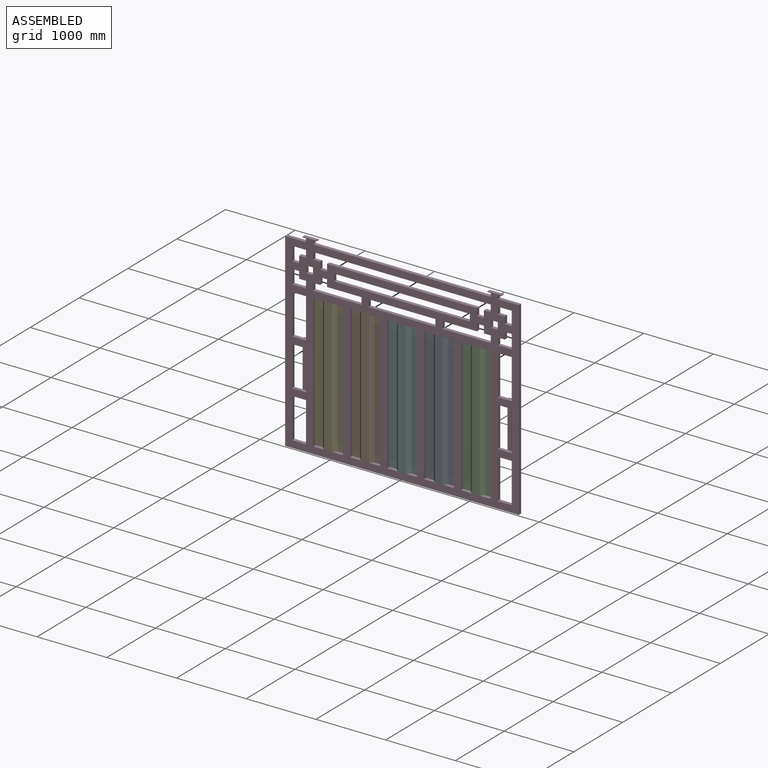
[diagram: assembled view]
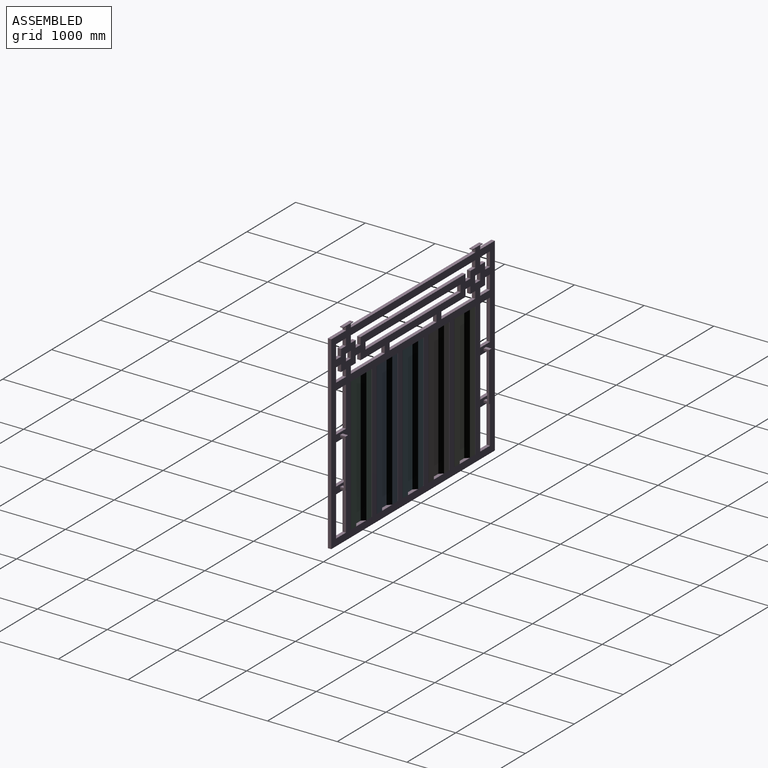
[diagram: assembled view, second angle]
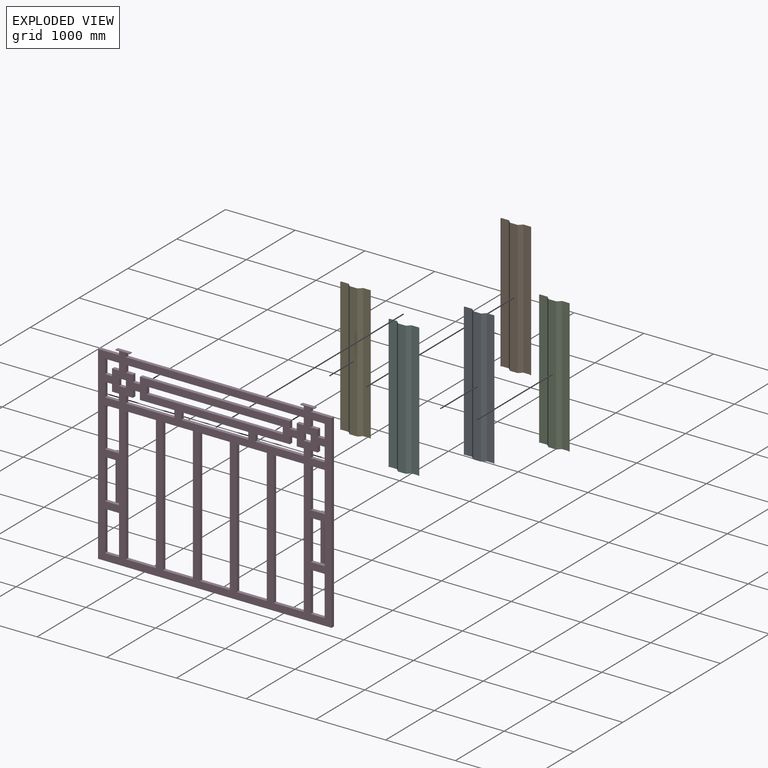
[diagram: exploded view]
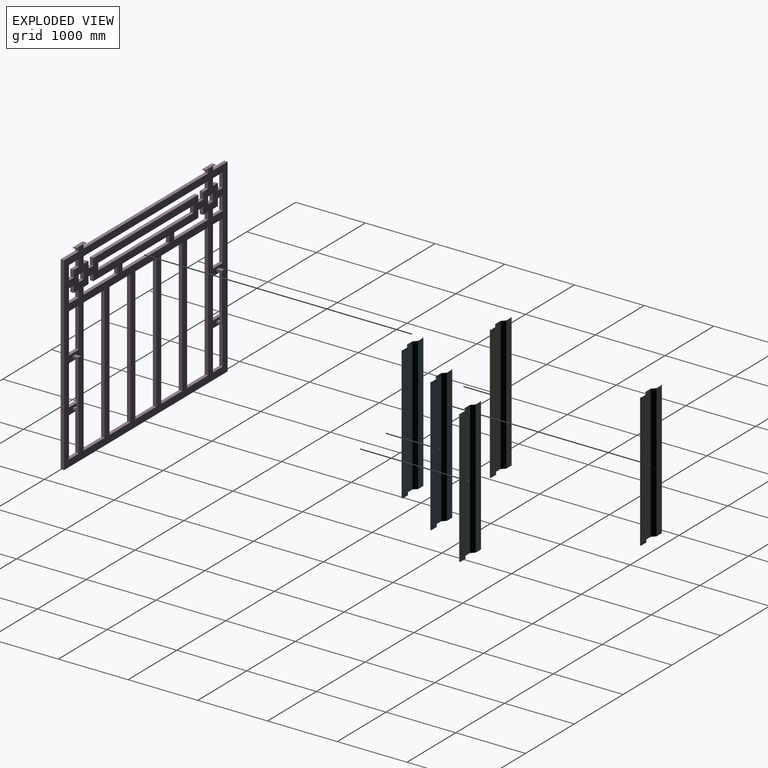
[diagram: exploded view, second angle]
ASSEMBLY  parts=6 mates=5
PART A: 54 faces, bbox 430x50x1920 mm
  f0: plane 10.7x2mm, normal (0,0,-1), area 21.4mm2, adj f2,f3,f4,f51
  f1: plane 10.7x2mm, normal (0,0,1), area 21.4mm2, adj f2,f3,f4,f50
  f2: plane 1920x2mm, normal (0,1,0), area 3840mm2, adj f0,f1,f3,f4
  f3: plane 1920x10.7mm, normal (-1,0,0), area 20544mm2, adj f0,f1,f2,f52
  f4: plane 1920x10.7mm, normal (1,0,0), area 20544mm2, adj f0,f1,f2,f53
  f5: plane 105.25x2mm, normal (0,0,-1), area 210.5mm2, adj f7,f8,f47,f51
  f6: plane 105.25x2mm, normal (0,0,1), area 210.5mm2, adj f7,f8,f46,f50
  f7: plane 1920x105.25mm, normal (0,-1,0), area 202084.3mm2, adj f5,f6,f48,f52
  f8: plane 1920x105.25mm, normal (0,1,0), area 202084.3mm2, adj f5,f6,f49,f53
  f9: plane 47.48x47.48mm, normal (0,0,-1), area 130.3mm2, adj f11,f12,f43,f47
  f10: plane 47.48x47.48mm, normal (0,0,1), area 130.3mm2, adj f11,f12,f42,f46
  f11: plane 1920x46.07mm, normal (0.71,-0.71,0), area 125085mm2, adj f9,f10,f45,f48
  f12: plane 1920x46.07mm, normal (-0.71,0.71,0), area 125085mm2, adj f9,f10,f44,f49
  f13: plane 109.43x2mm, normal (0,0,-1), area 218.9mm2, adj f15,f16,f39,f43
  f14: plane 109.43x2mm, normal (0,0,1), area 218.9mm2, adj f15,f16,f38,f42
  f15: plane 1920x109.43mm, normal (0,-1,0), area 210101.7mm2, adj f13,f14,f41,f45
  f16: plane 1920x109.43mm, normal (0,1,0), area 210101.7mm2, adj f13,f14,f40,f44
  f17: plane 47.48x47.48mm, normal (0,0,-1), area 130.3mm2, adj f19,f20,f35,f39
  f18: plane 47.48x47.48mm, normal (0,0,1), area 130.3mm2, adj f19,f20,f34,f38
  f19: plane 1920x46.07mm, normal (-0.71,-0.71,0), area 125085mm2, adj f17,f18,f36,f41
  f20: plane 1920x46.07mm, normal (0.71,0.71,0), area 125085mm2, adj f17,f18,f37,f40
  f21: plane 105.25x2mm, normal (0,0,-1), area 210.5mm2, adj f23,f24,f31,f35
  f22: plane 105.25x2mm, normal (0,0,1), area 210.5mm2, adj f23,f24,f30,f34
  f23: plane 1920x105.25mm, normal (0,-1,0), area 202084.3mm2, adj f21,f22,f32,f36
  f24: plane 1920x105.25mm, normal (0,1,0), area 202084.3mm2, adj f21,f22,f33,f37
  f25: plane 10.7x2mm, normal (0,0,-1), area 21.4mm2, adj f26,f28,f29,f31
  f26: plane 1920x2mm, normal (0,1,0), area 3840mm2, adj f25,f27,f28,f29
  f27: plane 10.7x2mm, normal (0,0,1), area 21.4mm2, adj f26,f28,f29,f30
  f28: plane 1920x10.7mm, normal (1,0,0), area 20544mm2, adj f25,f26,f27,f32
  f29: plane 1920x10.7mm, normal (-1,0,0), area 20544mm2, adj f25,f26,f27,f33
  f30: plane 4.3x4.3mm, normal (0,0,1), area 10.4mm2, adj f22,f27,f32,f33
  f31: plane 4.3x4.3mm, normal (0,0,-1), area 10.4mm2, adj f21,f25,f32,f33
  f32: cylinder r=4.3mm len=1920mm, axis (0,0,1), area 12968.5mm2, adj f23,f28,f30,f31
  f33: cylinder r=2.3mm len=1920mm, axis (0,0,1), area 6936.6mm2, adj f24,f29,f30,f31
  f34: plane 3.04x2.67mm, normal (0,0,1), area 5.2mm2, adj f18,f22,f36,f37
  f35: plane 3.04x2.67mm, normal (0,0,-1), area 5.2mm2, adj f17,f21,f36,f37
  f36: cylinder r=4.3mm len=1920mm, axis (0,0,1), area 6484.2mm2, adj f19,f23,f34,f35
  f37: cylinder r=2.3mm len=1920mm, axis (0,0,1), area 3468.3mm2, adj f20,f24,f34,f35
  f38: plane 3.04x2.67mm, normal (0,0,1), area 5.2mm2, adj f14,f18,f40,f41
  f39: plane 3.04x2.67mm, normal (0,0,-1), area 5.2mm2, adj f13,f17,f40,f41
  f40: cylinder r=4.3mm len=1920mm, axis (0,0,1), area 6484.2mm2, adj f16,f20,f38,f39
  f41: cylinder r=2.3mm len=1920mm, axis (0,0,1), area 3468.3mm2, adj f15,f19,f38,f39
  f42: plane 3.04x2.67mm, normal (0,0,1), area 5.2mm2, adj f10,f14,f44,f45
  f43: plane 3.04x2.67mm, normal (0,0,-1), area 5.2mm2, adj f9,f13,f44,f45
  f44: cylinder r=4.3mm len=1920mm, axis (0,0,1), area 6484.2mm2, adj f12,f16,f42,f43
  f45: cylinder r=2.3mm len=1920mm, axis (0,0,1), area 3468.3mm2, adj f11,f15,f42,f43
  f46: plane 3.04x2.67mm, normal (0,0,1), area 5.2mm2, adj f6,f10,f48,f49
  f47: plane 3.04x2.67mm, normal (0,0,-1), area 5.2mm2, adj f5,f9,f48,f49
  f48: cylinder r=4.3mm len=1920mm, axis (0,0,1), area 6484.2mm2, adj f7,f11,f46,f47
  f49: cylinder r=2.3mm len=1920mm, axis (0,0,1), area 3468.3mm2, adj f8,f12,f46,f47
  f50: plane 4.3x4.3mm, normal (0,0,1), area 10.4mm2, adj f1,f6,f52,f53
  f51: plane 4.3x4.3mm, normal (0,0,-1), area 10.4mm2, adj f0,f5,f52,f53
  f52: cylinder r=4.3mm len=1920mm, axis (0,0,1), area 12968.5mm2, adj f3,f7,f50,f51
  f53: cylinder r=2.3mm len=1920mm, axis (0,0,1), area 6936.6mm2, adj f4,f8,f50,f51
PART B: same geometry as A
PART C: same geometry as A
PART D: 154 faces, bbox 3350x130x2780 mm
  f0: plane 50x50mm, normal (0,0,1), area 2500mm2, adj f136,f142,f144,f149
  f1: plane 50x50mm, normal (0,0,-1), area 2500mm2, adj f136,f137,f139,f148
  f2: plane 50x50mm, normal (0,0,1), area 2500mm2, adj f136,f137,f139,f148
  f3: plane 1950x50mm, normal (0,0,-1), area 97500mm2, adj f4,f134,f135,f136
  f4: plane 100x50mm, normal (-1,0,0), area 5000mm2, adj f3,f5,f135,f136
  f5: plane 1950x50mm, normal (0,0,1), area 97500mm2, adj f4,f134,f135,f136
  f6: plane 100x50mm, normal (-1,0,0), area 5000mm2, adj f7,f112,f135,f136
  f7: plane 100x50mm, normal (0,0,1), area 5000mm2, adj f6,f8,f135,f136
  f8: plane 200x50mm, normal (1,0,0), area 10000mm2, adj f7,f9,f135,f136
  f9: plane 200x50mm, normal (0,0,-1), area 10000mm2, adj f8,f10,f135,f136
  f10: plane 100x50mm, normal (-1,0,0), area 5000mm2, adj f9,f112,f135,f136
  f11: plane 100x50mm, normal (1,0,0), area 5000mm2, adj f12,f113,f135,f136
  f12: plane 100x50mm, normal (0,0,-1), area 5000mm2, adj f11,f13,f135,f136
  f13: plane 100x50mm, normal (-1,0,0), area 5000mm2, adj f12,f113,f135,f136
  f14: plane 695x50mm, normal (0,0,1), area 34750mm2, adj f15,f114,f135,f136
  f15: plane 100x50mm, normal (1,0,0), area 5000mm2, adj f14,f16,f135,f136
  f16: plane 495x50mm, normal (0,0,-1), area 24750mm2, adj f15,f17,f135,f136
  f17: plane 100x50mm, normal (1,0,0), area 5000mm2, adj f16,f18,f135,f136
  f18: plane 100x50mm, normal (0,0,-1), area 5000mm2, adj f17,f19,f135,f136
  f19: plane 100x50mm, normal (-1,0,0), area 5000mm2, adj f18,f20,f135,f136
  f20: plane 100x50mm, normal (0,0,-1), area 5000mm2, adj f19,f114,f135,f136
  f21: plane 100x50mm, normal (0,0,1), area 5000mm2, adj f22,f115,f135,f136
  f22: plane 100x50mm, normal (1,0,0), area 5000mm2, adj f21,f23,f135,f136
  f23: plane 200x50mm, normal (0,0,-1), area 10000mm2, adj f22,f24,f135,f136
  f24: plane 200x50mm, normal (-1,0,0), area 10000mm2, adj f23,f25,f135,f136
  f25: plane 100x50mm, normal (0,0,1), area 5000mm2, adj f24,f115,f135,f136
  f26: plane 200x50mm, normal (0,0,1), area 10000mm2, adj f27,f116,f135,f136
  f27: plane 573.33x50mm, normal (1,0,0), area 28666.7mm2, adj f26,f28,f135,f136
  f28: plane 200x50mm, normal (0,0,-1), area 10000mm2, adj f27,f116,f135,f136
  f29: plane 430x50mm, normal (0,0,1), area 21500mm2, adj f30,f117,f135,f136
  f30: plane 1920x50mm, normal (1,0,0), area 96000mm2, adj f29,f31,f135,f136
  f31: plane 430x50mm, normal (0,0,-1), area 21500mm2, adj f30,f117,f135,f136
  f32: plane 1920x50mm, normal (1,0,0), area 96000mm2, adj f33,f118,f135,f136
  f33: plane 430x50mm, normal (0,0,-1), area 21500mm2, adj f32,f34,f135,f136
  f34: plane 1920x50mm, normal (-1,0,0), area 96000mm2, adj f33,f118,f135,f136
  f35: plane 200x50mm, normal (0,0,-1), area 10000mm2, adj f36,f119,f135,f136
  f36: plane 573.33x50mm, normal (-1,0,0), area 28666.7mm2, adj f35,f37,f135,f136
  f37: plane 200x50mm, normal (0,0,1), area 10000mm2, adj f36,f119,f135,f136
  f38: plane 200x50mm, normal (0,0,-1), area 10000mm2, adj f39,f120,f135,f136
  f39: plane 573.33x50mm, normal (-1,0,0), area 28666.7mm2, adj f38,f40,f135,f136
  f40: plane 200x50mm, normal (0,0,1), area 10000mm2, adj f39,f120,f135,f136
  f41: plane 573.33x50mm, normal (1,0,0), area 28666.7mm2, adj f42,f121,f135,f136
  f42: plane 200x50mm, normal (0,0,-1), area 10000mm2, adj f41,f43,f135,f136
  f43: plane 573.33x50mm, normal (-1,0,0), area 28666.7mm2, adj f42,f121,f135,f136
  f44: plane 573.33x50mm, normal (-1,0,0), area 28666.7mm2, adj f45,f122,f135,f136
  f45: plane 200x50mm, normal (0,0,1), area 10000mm2, adj f44,f46,f135,f136
  f46: plane 573.33x50mm, normal (1,0,0), area 28666.7mm2, adj f45,f122,f135,f136
  f47: plane 200x50mm, normal (0,0,1), area 10000mm2, adj f48,f123,f135,f136
  f48: plane 573.33x50mm, normal (1,0,0), area 28666.7mm2, adj f47,f49,f135,f136
  f49: plane 200x50mm, normal (0,0,-1), area 10000mm2, adj f48,f123,f135,f136
  f50: plane 200x50mm, normal (-1,0,0), area 10000mm2, adj f51,f124,f135,f136
  f51: plane 200x50mm, normal (0,0,1), area 10000mm2, adj f50,f52,f135,f136
  f52: plane 100x50mm, normal (1,0,0), area 5000mm2, adj f51,f53,f135,f136
  f53: plane 100x50mm, normal (0,0,-1), area 5000mm2, adj f52,f54,f135,f136
  f54: plane 100x50mm, normal (1,0,0), area 5000mm2, adj f53,f124,f135,f136
  f55: plane 100x50mm, normal (1,0,0), area 5000mm2, adj f56,f125,f135,f136
  f56: plane 100x50mm, normal (0,0,1), area 5000mm2, adj f55,f57,f135,f136
  f57: plane 100x50mm, normal (1,0,0), area 5000mm2, adj f56,f58,f135,f136
  f58: plane 2550x50mm, normal (0,0,-1), area 127500mm2, adj f57,f59,f135,f136
  f59: plane 100x50mm, normal (-1,0,0), area 5000mm2, adj f58,f60,f135,f136
  f60: plane 100x50mm, normal (0,0,1), area 5000mm2, adj f59,f61,f135,f136
  f61: plane 100x50mm, normal (-1,0,0), area 5000mm2, adj f60,f62,f135,f136
  f62: plane 100x50mm, normal (0,0,1), area 5000mm2, adj f61,f63,f135,f136
  f63: plane 100x50mm, normal (1,0,0), area 5000mm2, adj f62,f64,f135,f136
  f64: plane 2150x50mm, normal (0,0,1), area 107500mm2, adj f63,f65,f135,f136
  f65: plane 100x50mm, normal (-1,0,0), area 5000mm2, adj f64,f125,f135,f136
  f66: plane 100x50mm, normal (1,0,0), area 5000mm2, adj f67,f126,f135,f136
  f67: plane 100x50mm, normal (0,0,-1), area 5000mm2, adj f66,f68,f135,f136
  f68: plane 100x50mm, normal (1,0,0), area 5000mm2, adj f67,f69,f135,f136
  f69: plane 100x50mm, normal (0,0,-1), area 5000mm2, adj f68,f70,f135,f136
  f70: plane 100x50mm, normal (-1,0,0), area 5000mm2, adj f69,f71,f135,f136
  f71: plane 495x50mm, normal (0,0,-1), area 24750mm2, adj f70,f72,f135,f136
  f72: plane 100x50mm, normal (-1,0,0), area 5000mm2, adj f71,f126,f135,f136
  f73: plane 200x50mm, normal (0,0,1), area 10000mm2, adj f74,f127,f135,f136
  f74: plane 200x50mm, normal (1,0,0), area 10000mm2, adj f73,f75,f135,f136
  f75: plane 100x50mm, normal (0,0,-1), area 5000mm2, adj f74,f76,f135,f136
  f76: plane 100x50mm, normal (-1,0,0), area 5000mm2, adj f75,f77,f135,f136
  f77: plane 100x50mm, normal (0,0,-1), area 5000mm2, adj f76,f127,f135,f136
  f78: plane 100x50mm, normal (1,0,0), area 5000mm2, adj f79,f128,f135,f136
  f79: plane 100x50mm, normal (0,0,-1), area 5000mm2, adj f78,f80,f135,f136
  f80: plane 100x50mm, normal (-1,0,0), area 5000mm2, adj f79,f128,f135,f136
  f81: plane 960x50mm, normal (0,0,1), area 48000mm2, adj f82,f129,f135,f136
  f82: plane 100x50mm, normal (1,0,0), area 5000mm2, adj f81,f83,f135,f136
  f83: plane 960x50mm, normal (0,0,-1), area 48000mm2, adj f82,f129,f135,f136
  f84: plane 1920x50mm, normal (1,0,0), area 96000mm2, adj f85,f130,f135,f136
  f85: plane 430x50mm, normal (0,0,-1), area 21500mm2, adj f84,f86,f135,f136
  f86: plane 1920x50mm, normal (-1,0,0), area 96000mm2, adj f85,f130,f135,f136
  f87: plane 1920x50mm, normal (1,0,0), area 96000mm2, adj f88,f131,f135,f136
  f88: plane 430x50mm, normal (0,0,-1), area 21500mm2, adj f87,f89,f135,f136
  f89: plane 1920x50mm, normal (-1,0,0), area 96000mm2, adj f88,f131,f135,f136
  f90: plane 1920x50mm, normal (1,0,0), area 96000mm2, adj f91,f132,f135,f136
  f91: plane 430x50mm, normal (0,0,-1), area 21500mm2, adj f90,f92,f135,f136
  f92: plane 1920x50mm, normal (-1,0,0), area 96000mm2, adj f91,f132,f135,f136
  f93: plane 50x50mm, normal (-1,0,0), area 2500mm2, adj f94,f133,f135,f136
  f94: plane 300x50mm, normal (0,0,1), area 15000mm2, adj f93,f95,f135,f136
  f95: plane 2720x50mm, normal (-1,0,0), area 136000mm2, adj f94,f96,f135,f136
  f96: plane 3350x50mm, normal (0,0,-1), area 167500mm2, adj f95,f97,f135,f136
  f97: plane 2720x50mm, normal (1,0,0), area 136000mm2, adj f96,f98,f135,f136
  f98: plane 300x50mm, normal (0,0,1), area 15000mm2, adj f97,f99,f135,f136
  f99: plane 50x50mm, normal (1,0,0), area 2500mm2, adj f98,f100,f135,f136
  f100: plane 50x50mm, normal (0,0,-1), area 2443.3mm2, adj f99,f101,f135,f136,f153
  f101: plane 50x10mm, normal (1,0,0), area 500mm2, adj f100,f102,f135,f136
  f102: plane 200x50mm, normal (0,0,1), area 9886.5mm2, adj f101,f103,f135,f136,f152,f153
  f103: plane 50x10mm, normal (-1,0,0), area 500mm2, adj f102,f104,f135,f136
  f104: plane 50x50mm, normal (0,0,-1), area 2443.3mm2, adj f103,f105,f135,f136,f152
  f105: plane 50x50mm, normal (-1,0,0), area 2500mm2, adj f104,f106,f135,f136
  f106: plane 2550x50mm, normal (0,0,1), area 127500mm2, adj f105,f107,f135,f136
  f107: plane 50x50mm, normal (1,0,0), area 2500mm2, adj f106,f108,f135,f136
  f108: plane 50x50mm, normal (0,0,-1), area 2443.3mm2, adj f107,f109,f135,f136,f151
  f109: plane 50x10mm, normal (1,0,0), area 500mm2, adj f108,f110,f135,f136
  f110: plane 200x50mm, normal (0,0,1), area 9886.5mm2, adj f109,f111,f135,f136,f150,f151
  f111: plane 50x10mm, normal (-1,0,0), area 500mm2, adj f110,f133,f135,f136
  f112: plane 100x50mm, normal (0,0,1), area 5000mm2, adj f6,f10,f135,f136
  f113: plane 100x50mm, normal (0,0,1), area 5000mm2, adj f11,f13,f135,f136
  f114: plane 100x50mm, normal (-1,0,0), area 5000mm2, adj f14,f20,f135,f136
  f115: plane 100x50mm, normal (1,0,0), area 5000mm2, adj f21,f25,f135,f136
  f116: plane 573.33x50mm, normal (-1,0,0), area 28666.7mm2, adj f26,f28,f135,f136
  f117: plane 1920x50mm, normal (-1,0,0), area 96000mm2, adj f29,f31,f135,f136
  f118: plane 430x50mm, normal (0,0,1), area 21500mm2, adj f32,f34,f135,f136
  f119: plane 573.33x50mm, normal (1,0,0), area 28666.7mm2, adj f35,f37,f135,f136
  f120: plane 573.33x50mm, normal (1,0,0), area 28666.7mm2, adj f38,f40,f135,f136
  f121: plane 200x50mm, normal (0,0,1), area 10000mm2, adj f41,f43,f135,f136
  f122: plane 200x50mm, normal (0,0,-1), area 10000mm2, adj f44,f46,f135,f136
  f123: plane 573.33x50mm, normal (-1,0,0), area 28666.7mm2, adj f47,f49,f135,f136
  f124: plane 100x50mm, normal (0,0,-1), area 5000mm2, adj f50,f54,f135,f136
  f125: plane 100x50mm, normal (0,0,1), area 5000mm2, adj f55,f65,f135,f136
  f126: plane 695x50mm, normal (0,0,1), area 34750mm2, adj f66,f72,f135,f136
  f127: plane 100x50mm, normal (-1,0,0), area 5000mm2, adj f73,f77,f135,f136
  f128: plane 100x50mm, normal (0,0,1), area 5000mm2, adj f78,f80,f135,f136
  f129: plane 100x50mm, normal (-1,0,0), area 5000mm2, adj f81,f83,f135,f136
  f130: plane 430x50mm, normal (0,0,1), area 21500mm2, adj f84,f86,f135,f136
  f131: plane 430x50mm, normal (0,0,1), area 21500mm2, adj f87,f89,f135,f136
  f132: plane 430x50mm, normal (0,0,1), area 21500mm2, adj f90,f92,f135,f136
  f133: plane 50x50mm, normal (0,0,-1), area 2443.3mm2, adj f93,f111,f135,f136,f150
  f134: plane 100x50mm, normal (1,0,0), area 5000mm2, adj f3,f5,f135,f136
  f135: plane 3350x2780mm, normal (0,-1,0), area 3445000mm2, adj f3,f4,f5,f6,f7,f8,f9,f10
  f136: plane 3350x2780mm, normal (0,1,0), area 3439000mm2, adj f0,f1,f2,f3,f4,f5,f6,f7
  f137: plane 703.33x80mm, normal (-1,0,0), area 24100mm2, adj f1,f2,f136,f138,f140,f141,f148
  f138: plane 80x50mm, normal (0,0,1), area 4000mm2, adj f136,f137,f139,f140
  f139: plane 703.33x80mm, normal (1,0,0), area 24100mm2, adj f1,f2,f136,f138,f140,f141,f148
  f140: plane 703.33x50mm, normal (0,1,0), area 35166.7mm2, adj f137,f138,f139,f141
  f141: plane 80x50mm, normal (0,0,-1), area 4000mm2, adj f136,f137,f139,f140
  f142: plane 703.33x80mm, normal (-1,0,0), area 24100mm2, adj f0,f136,f143,f145,f146,f147,f149
  f143: plane 80x50mm, normal (0,0,1), area 4000mm2, adj f136,f142,f144,f146
  f144: plane 703.33x80mm, normal (1,0,0), area 24100mm2, adj f0,f136,f143,f145,f146,f147,f149
  f145: plane 50x50mm, normal (0,0,-1), area 2500mm2, adj f136,f142,f144,f149
  f146: plane 703.33x50mm, normal (0,1,0), area 35166.7mm2, adj f142,f143,f144,f147
  f147: plane 80x50mm, normal (0,0,-1), area 4000mm2, adj f136,f142,f144,f146
  f148: plane 643.33x50mm, normal (0,-1,0), area 32166.7mm2, adj f1,f2,f137,f139
  f149: plane 643.33x50mm, normal (0,-1,0), area 32166.7mm2, adj f0,f142,f144,f145
  f150: cylinder r=4.25mm len=10mm, axis (0,0,1), area 267mm2, adj f110,f133
  f151: cylinder r=4.25mm len=10mm, axis (0,0,1), area 267mm2, adj f108,f110
  f152: cylinder r=4.25mm len=10mm, axis (0,0,1), area 267mm2, adj f102,f104
  f153: cylinder r=4.25mm len=10mm, axis (0,0,1), area 267mm2, adj f100,f102
PART E: same geometry as A
PART F: same geometry as A
PLACE A rot(axis=(1,0,0),180deg) t=(-1371.69,-44.21,1156.87)mm
PLACE B rot(axis=(1,0,0),180deg) t=(-2431.69,-44.21,1156.87)mm
PLACE C rot(axis=(1,0,0),180deg) t=(-841.69,-44.21,1156.87)mm
PLACE D t=(-1901.69,-44.21,196.87)mm
PLACE E rot(axis=(1,0,0),180deg) t=(-2961.69,-44.21,1156.87)mm
PLACE F rot(axis=(1,0,0),180deg) t=(-1901.69,-44.21,1156.87)mm
MATE fastened E.f16 <-> D.f135  axis (0,-1,0) through (-2961.69,-94.21,196.87)mm
MATE fastened A.f16 <-> D.f135  axis (0,-1,0) through (-1371.69,-94.21,196.87)mm
MATE fastened C.f16 <-> D.f135  axis (0,-1,0) through (-841.69,-94.21,196.87)mm
MATE fastened F.f16 <-> D.f135  axis (0,-1,0) through (-1901.69,-94.21,196.87)mm
MATE fastened B.f16 <-> D.f135  axis (0,-1,0) through (-2431.69,-94.21,196.87)mm
